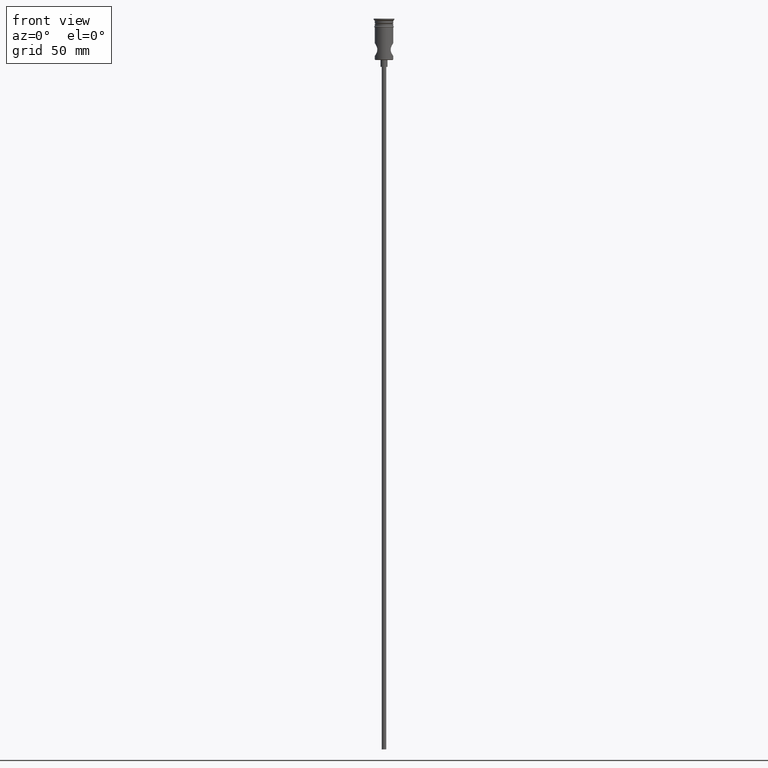
[diagram: clean part render]
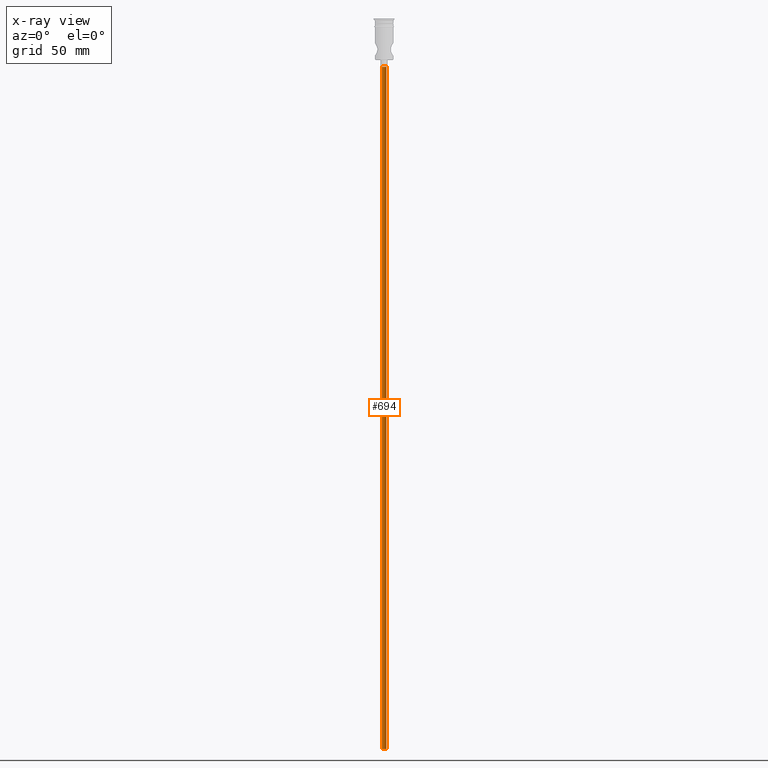
[diagram: x-ray — body ghosted, one internal face saturated and labeled with its STEP entity id]
A machine part, front view, then the same camera in x-ray: the body is ghosted and one INTERNAL B-rep face — a face not visible from any outside direction — is saturated and labeled: STEP entity #694.
In plain terms, the highlighted cylindrical surface (edge-blend (fillet) strip) has radius 1 mm, axis along (-0, -0, 1).
Its self-contained STEP definition (entity closure, byte-faithful):
#64 = CARTESIAN_POINT ( 'NONE',  ( -0.9999999999999997780, 1.224646799147352961E-16, -318.0000000000000000 ) ) ;
#67 = CARTESIAN_POINT ( 'NONE',  ( -0.9999999999999997780, 1.224646799147352961E-16, -318.0000000000000000 ) ) ;
#123 = EDGE_CURVE ( 'NONE', #510, #962, #277, .T. ) ;
#198 = AXIS2_PLACEMENT_3D ( 'NONE', #685, #1314, #693 ) ;
#216 = DIRECTION ( 'NONE',  ( 1.000000000000000000, 0.000000000000000000, 0.000000000000000000 ) ) ;
#224 = CIRCLE ( 'NONE', #811, 0.9999999999999997780 ) ;
#277 = LINE ( 'NONE', #64, #428 ) ;
#288 = AXIS2_PLACEMENT_3D ( 'NONE', #301, #1201, #216 ) ;
#301 = CARTESIAN_POINT ( 'NONE',  ( 0.000000000000000000, 0.000000000000000000, -318.0000000000000000 ) ) ;
#304 = DIRECTION ( 'NONE',  ( -0.000000000000000000, -0.000000000000000000, 1.000000000000000000 ) ) ;
#321 = DIRECTION ( 'NONE',  ( -0.000000000000000000, -0.000000000000000000, 1.000000000000000000 ) ) ;
#333 = FACE_OUTER_BOUND ( 'NONE', #374, .T. ) ;
#347 = CARTESIAN_POINT ( 'NONE',  ( 0.9999999999999997780, 0.000000000000000000, -20.99999999999999645 ) ) ;
#368 = VERTEX_POINT ( 'NONE', #347 ) ;
#372 = CARTESIAN_POINT ( 'NONE',  ( 0.9999999999999997780, 0.000000000000000000, -318.0000000000000000 ) ) ;
#374 = EDGE_LOOP ( 'NONE', ( #919, #1087, #647, #451 ) ) ;
#412 = DIRECTION ( 'NONE',  ( 0.000000000000000000, 0.000000000000000000, -1.000000000000000000 ) ) ;
#428 = VECTOR ( 'NONE', #304, 1000.000000000000000 ) ;
#451 = ORIENTED_EDGE ( 'NONE', *, *, #1041, .F. ) ;
#510 = VERTEX_POINT ( 'NONE', #67 ) ;
#614 = VECTOR ( 'NONE', #321, 1000.000000000000000 ) ;
#621 = LINE ( 'NONE', #952, #614 ) ;
#644 = CYLINDRICAL_SURFACE ( 'NONE', #288, 0.9999999999999997780 ) ;
#647 = ORIENTED_EDGE ( 'NONE', *, *, #778, .T. ) ;
#648 = EDGE_CURVE ( 'NONE', #510, #988, #224, .T. ) ;
#685 = CARTESIAN_POINT ( 'NONE',  ( 0.000000000000000000, 0.000000000000000000, -20.99999999999999645 ) ) ;
#693 = DIRECTION ( 'NONE',  ( -1.000000000000000000, 0.000000000000000000, 0.000000000000000000 ) ) ;
#694 = ADVANCED_FACE ( 'NONE', ( #333 ), #644, .T. ) ;
#778 = EDGE_CURVE ( 'NONE', #962, #368, #1296, .T. ) ;
#811 = AXIS2_PLACEMENT_3D ( 'NONE', #843, #412, #1411 ) ;
#843 = CARTESIAN_POINT ( 'NONE',  ( 0.000000000000000000, 0.000000000000000000, -318.0000000000000000 ) ) ;
#919 = ORIENTED_EDGE ( 'NONE', *, *, #648, .F. ) ;
#952 = CARTESIAN_POINT ( 'NONE',  ( 0.9999999999999997780, 0.000000000000000000, -318.0000000000000000 ) ) ;
#962 = VERTEX_POINT ( 'NONE', #1331 ) ;
#988 = VERTEX_POINT ( 'NONE', #372 ) ;
#1041 = EDGE_CURVE ( 'NONE', #988, #368, #621, .T. ) ;
#1087 = ORIENTED_EDGE ( 'NONE', *, *, #123, .T. ) ;
#1201 = DIRECTION ( 'NONE',  ( -0.000000000000000000, -0.000000000000000000, 1.000000000000000000 ) ) ;
#1296 = CIRCLE ( 'NONE', #198, 0.9999999999999997780 ) ;
#1314 = DIRECTION ( 'NONE',  ( 0.000000000000000000, 0.000000000000000000, -1.000000000000000000 ) ) ;
#1331 = CARTESIAN_POINT ( 'NONE',  ( -0.9999999999999997780, 1.224646799147352961E-16, -20.99999999999999645 ) ) ;
#1411 = DIRECTION ( 'NONE',  ( -1.000000000000000000, 0.000000000000000000, 0.000000000000000000 ) ) ;